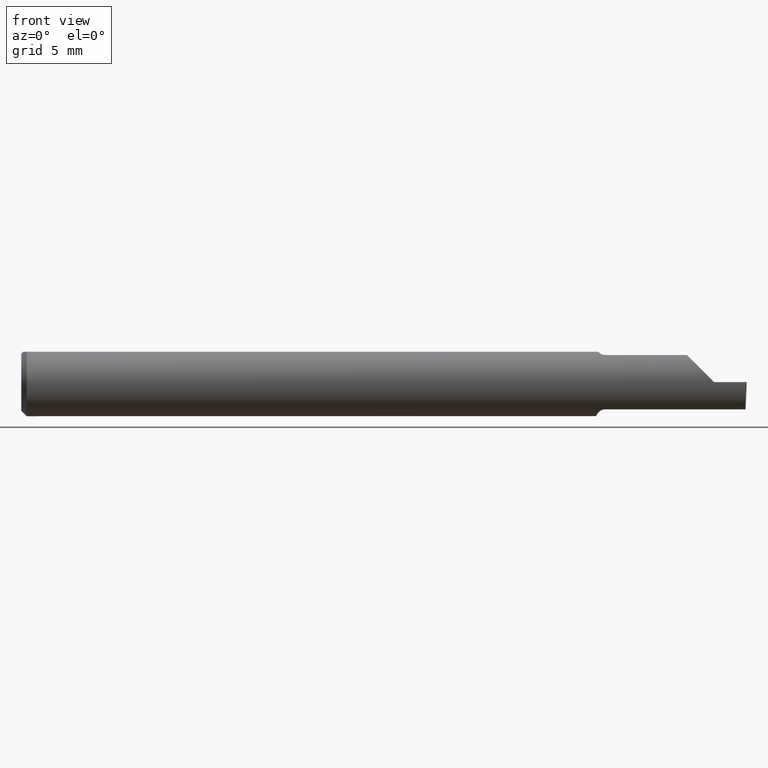
[diagram: clean part render]
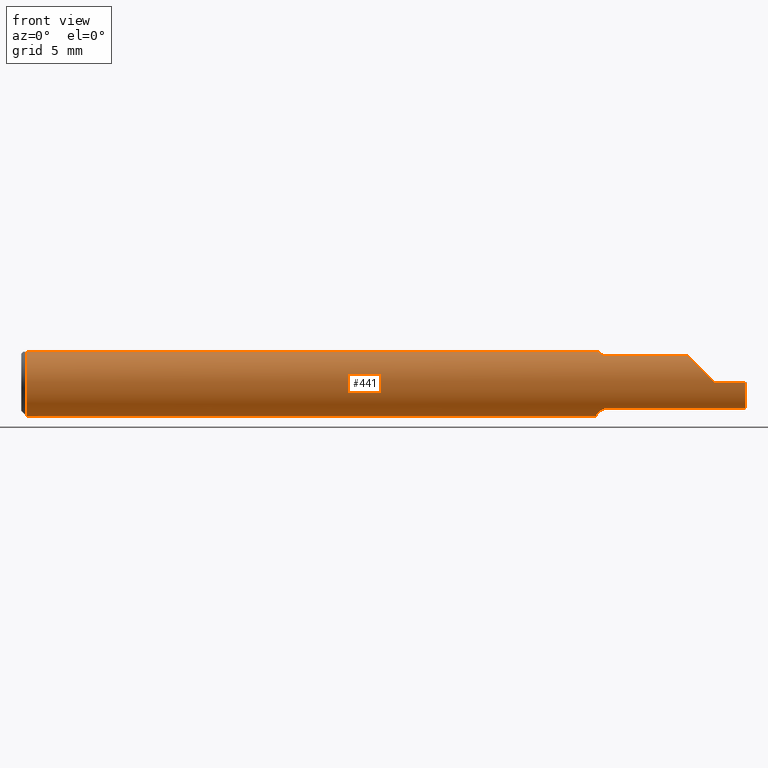
[diagram: same view with one face highlighted and labeled with its STEP entity id]
A machine part, front view. The second image highlights one B-rep face of the part: STEP entity #441.
In plain terms, the highlighted cylindrical surface (edge-blend (fillet) strip) has radius 2.3813 mm, axis along (-1, -0, -0).
Its self-contained STEP definition (entity closure, byte-faithful):
#11 = LINE ( 'NONE', #225, #552 ) ;
#12 = VERTEX_POINT ( 'NONE', #17 ) ;
#15 = VERTEX_POINT ( 'NONE', #341 ) ;
#17 = CARTESIAN_POINT ( 'NONE',  ( 1.609999999999999654, -0.05838157894736842324, 0.07335293954308978737 ) ) ;
#20 = VECTOR ( 'NONE', #621, 39.37007874015748143 ) ;
#23 = EDGE_CURVE ( 'NONE', #622, #12, #557, .T. ) ;
#24 = ORIENTED_EDGE ( 'NONE', *, *, #230, .F. ) ;
#28 = DIRECTION ( 'NONE',  ( -1.000000000000000000, -0.000000000000000000, -0.000000000000000000 ) ) ;
#30 = ORIENTED_EDGE ( 'NONE', *, *, #626, .T. ) ;
#40 = CARTESIAN_POINT ( 'NONE',  ( 1.598207558315201782, -0.05325480917215880128, -0.07718836402619501380 ) ) ;
#51 = EDGE_CURVE ( 'NONE', #15, #388, #481, .T. ) ;
#54 = VECTOR ( 'NONE', #582, 39.37007874015748143 ) ;
#62 = EDGE_CURVE ( 'NONE', #592, #355, #169, .T. ) ;
#64 = CYLINDRICAL_SURFACE ( 'NONE', #516, 0.09375000000000001388 ) ;
#71 = EDGE_LOOP ( 'NONE', ( #336, #232, #586, #30, #109, #563, #537, #438, #24, #139, #344, #199, #392 ) ) ;
#72 = DIRECTION ( 'NONE',  ( -1.000000000000000000, 2.147679240302093876E-17, -0.000000000000000000 ) ) ;
#80 = CARTESIAN_POINT ( 'NONE',  ( 1.854748759155722571, -0.08112527369187338966, 0.05525124084427806420 ) ) ;
#85 = DIRECTION ( 'NONE',  ( 0.02617296143184116158, -0.0004568507411563393905, 0.9996573249755575929 ) ) ;
#91 = VERTEX_POINT ( 'NONE', #495 ) ;
#92 = EDGE_CURVE ( 'NONE', #474, #91, #11, .T. ) ;
#99 = CARTESIAN_POINT ( 'NONE',  ( 1.584999999999999520, -0.007211988304093602635, -0.09347218690445632805 ) ) ;
#109 = ORIENTED_EDGE ( 'NONE', *, *, #265, .F. ) ;
#114 = CARTESIAN_POINT ( 'NONE',  ( 1.590999686877564434, -0.04213074886538892977, 0.08375000000000000500 ) ) ;
#120 = AXIS2_PLACEMENT_3D ( 'NONE', #295, #28, #618 ) ;
#133 = CARTESIAN_POINT ( 'NONE',  ( 1.590999686877564434, -0.04213074886538892977, 0.08375000000000000500 ) ) ;
#139 = ORIENTED_EDGE ( 'NONE', *, *, #62, .F. ) ;
#147 = CARTESIAN_POINT ( 'NONE',  ( 1.796249999999999680, -0.05838157894736843712, 0.07335293954308980124 ) ) ;
#153 = CARTESIAN_POINT ( 'NONE',  ( 1.600060066263265135, -0.05494027375950292363, -0.07598188839406208595 ) ) ;
#160 = CARTESIAN_POINT ( 'NONE',  ( 1.584999999999999520, -0.007211988304093602635, -0.09347218690445632805 ) ) ;
#164 = CARTESIAN_POINT ( 'NONE',  ( 1.607575688152824256, -0.05838157894736861059, 0.07335293954308967634 ) ) ;
#169 = LINE ( 'NONE', #338, #54 ) ;
#172 =( BOUNDED_CURVE ( )  B_SPLINE_CURVE ( 3, ( #246, #558, #300, #503 ),
 .UNSPECIFIED., .F., .T. ) 
 B_SPLINE_CURVE_WITH_KNOTS ( ( 4, 4 ),
 ( 0.08452019423454062985, 0.9826237902196911511 ),
 .UNSPECIFIED. ) 
 CURVE ( )  GEOMETRIC_REPRESENTATION_ITEM ( )  RATIONAL_B_SPLINE_CURVE ( ( 1.000000000000000000, 0.9339060884622309988, 0.9339060884622309988, 1.000000000000000000 ) ) 
 REPRESENTATION_ITEM ( '' )  );
#174 = CARTESIAN_POINT ( 'NONE',  ( 0.01499999999999999944, -0.04213074886588177859, 0.08375000000000000500 ) ) ;
#180 =( BOUNDED_CURVE ( )  B_SPLINE_CURVE ( 3, ( #340, #510, #80, #405 ),
 .UNSPECIFIED., .F., .T. ) 
 B_SPLINE_CURVE_WITH_KNOTS ( ( 4, 4 ),
 ( 4.712388980384689674, 5.610949583684183395 ),
 .UNSPECIFIED. ) 
 CURVE ( )  GEOMETRIC_REPRESENTATION_ITEM ( )  RATIONAL_B_SPLINE_CURVE ( ( 1.000000000000000000, 0.9338399420684103669, 0.9338399420684103669, 1.000000000000000000 ) ) 
 REPRESENTATION_ITEM ( '' )  );
#199 = ORIENTED_EDGE ( 'NONE', *, *, #310, .F. ) ;
#200 = CARTESIAN_POINT ( 'NONE',  ( 1.585324359334076672, -0.01810271085742279698, -0.09214472197636142115 ) ) ;
#204 = CARTESIAN_POINT ( 'NONE',  ( 0.01500000000000000291, 0.04213074886588177859, 0.08375000000000000500 ) ) ;
#211 = CIRCLE ( 'NONE', #334, 0.09375000000000001388 ) ;
#212 = LINE ( 'NONE', #315, #426 ) ;
#218 = DIRECTION ( 'NONE',  ( 0.000000000000000000, 0.000000000000000000, 1.000000000000000000 ) ) ;
#221 = DIRECTION ( 'NONE',  ( -1.000000000000000000, -0.000000000000000000, -0.000000000000000000 ) ) ;
#223 = FACE_OUTER_BOUND ( 'NONE', #71, .T. ) ;
#225 = CARTESIAN_POINT ( 'NONE',  ( 2.999519565323743132E-32, -0.09375000000000001388, 2.449293598294717754E-16 ) ) ;
#230 = EDGE_CURVE ( 'NONE', #355, #15, #368, .T. ) ;
#232 = ORIENTED_EDGE ( 'NONE', *, *, #664, .T. ) ;
#235 = VECTOR ( 'NONE', #72, 39.37007874015748143 ) ;
#246 = CARTESIAN_POINT ( 'NONE',  ( 1.995485408891350287, -0.05838157894736844405, -0.07335293954308980124 ) ) ;
#258 = CARTESIAN_POINT ( 'NONE',  ( 1.609999999999999654, -0.05838157894736840936, -0.07335293954308978737 ) ) ;
#265 = EDGE_CURVE ( 'NONE', #12, #453, #668, .T. ) ;
#271 = VERTEX_POINT ( 'NONE', #258 ) ;
#287 = CARTESIAN_POINT ( 'NONE',  ( 1.994172072281005459, -0.09370431490906530603, -0.09996576130738767108 ) ) ;
#288 = CARTESIAN_POINT ( 'NONE',  ( 1.592739023925776598, -0.04611560730424160010, 0.08174540214768907798 ) ) ;
#295 = CARTESIAN_POINT ( 'NONE',  ( 0.01499999999999999944, 0.000000000000000000, 0.000000000000000000 ) ) ;
#297 = CARTESIAN_POINT ( 'NONE',  ( 1.584999999999999520, 0.000000000000000000, 0.000000000000000000 ) ) ;
#300 = CARTESIAN_POINT ( 'NONE',  ( 1.996027606133761179, -0.09373671316968848477, -0.02909498180803899575 ) ) ;
#310 = EDGE_CURVE ( 'NONE', #271, #311, #576, .T. ) ;
#311 = VERTEX_POINT ( 'NONE', #99 ) ;
#315 = CARTESIAN_POINT ( 'NONE',  ( 0.000000000000000000, -0.04213074886588177859, 0.08375000000000000500 ) ) ;
#325 = CARTESIAN_POINT ( 'NONE',  ( 0.01499999999999999944, 0.000000000000000000, 0.000000000000000000 ) ) ;
#334 = AXIS2_PLACEMENT_3D ( 'NONE', #297, #462, #659 ) ;
#336 = ORIENTED_EDGE ( 'NONE', *, *, #655, .T. ) ;
#338 = CARTESIAN_POINT ( 'NONE',  ( 0.000000000000000000, 0.04213074886588177859, 0.08375000000000000500 ) ) ;
#340 = CARTESIAN_POINT ( 'NONE',  ( 1.910000000000000142, -0.09375000000000001388, 1.102182119232621301E-17 ) ) ;
#341 = CARTESIAN_POINT ( 'NONE',  ( 0.01499999999999999944, 0.000000000000000000, -0.09375000000000001388 ) ) ;
#344 = ORIENTED_EDGE ( 'NONE', *, *, #488, .F. ) ;
#352 = CARTESIAN_POINT ( 'NONE',  ( 1.796249999999999680, -0.05838157894736843712, -0.07335293954308980124 ) ) ;
#354 = EDGE_CURVE ( 'NONE', #388, #622, #212, .T. ) ;
#355 = VERTEX_POINT ( 'NONE', #204 ) ;
#359 = AXIS2_PLACEMENT_3D ( 'NONE', #325, #596, #501 ) ;
#368 = CIRCLE ( 'NONE', #120, 0.09375000000000001388 ) ;
#370 = CARTESIAN_POINT ( 'NONE',  ( 1.609999999999999654, -0.05838157894736840936, -0.07335293954308978737 ) ) ;
#380 = CARTESIAN_POINT ( 'NONE',  ( 1.996789369178486595, -0.09374999999634724135, 1.727064893179230389E-17 ) ) ;
#388 = VERTEX_POINT ( 'NONE', #174 ) ;
#390 = CARTESIAN_POINT ( 'NONE',  ( 1.599466403312456819, -0.05436279821624136893, 0.07640134852137274446 ) ) ;
#392 = ORIENTED_EDGE ( 'NONE', *, *, #650, .F. ) ;
#405 = CARTESIAN_POINT ( 'NONE',  ( 1.836647060456910729, -0.05838157894736844405, 0.07335293954308981512 ) ) ;
#409 = CARTESIAN_POINT ( 'NONE',  ( 1.996788247257474058, -0.09374999020988993015, -4.284443422834860931E-05 ) ) ;
#426 = VECTOR ( 'NONE', #569, 39.37007874015748143 ) ;
#438 = ORIENTED_EDGE ( 'NONE', *, *, #51, .F. ) ;
#440 = CARTESIAN_POINT ( 'NONE',  ( 1.601220712553798720, -0.05572867853941683436, 0.07539872578566603201 ) ) ;
#441 = ADVANCED_FACE ( 'NONE', ( #223 ), #64, .T. ) ;
#442 = DIRECTION ( 'NONE',  ( -1.000000000000000000, -0.000000000000000000, -0.000000000000000000 ) ) ;
#446 = CARTESIAN_POINT ( 'NONE',  ( 1.584999999999999520, 0.04213074886588177859, 0.08375000000000000500 ) ) ;
#453 = VERTEX_POINT ( 'NONE', #581 ) ;
#462 = DIRECTION ( 'NONE',  ( 1.000000000000000000, -2.147679240302093876E-17, 0.000000000000000000 ) ) ;
#472 = CARTESIAN_POINT ( 'NONE',  ( 1.604549969027321721, -0.05752976837683124178, -0.07404057533005115044 ) ) ;
#474 = VERTEX_POINT ( 'NONE', #380 ) ;
#481 = CIRCLE ( 'NONE', #359, 0.09375000000000001388 ) ;
#488 = EDGE_CURVE ( 'NONE', #311, #592, #211, .T. ) ;
#493 = CARTESIAN_POINT ( 'NONE',  ( 1.605240307031869040, -0.05773700189513420594, 0.07387213327103113458 ) ) ;
#495 = CARTESIAN_POINT ( 'NONE',  ( 1.910000000000000142, -0.09375000000000001388, 1.102182119232621301E-17 ) ) ;
#501 = DIRECTION ( 'NONE',  ( 0.000000000000000000, 0.000000000000000000, 1.000000000000000000 ) ) ;
#502 = VERTEX_POINT ( 'NONE', #409 ) ;
#503 = CARTESIAN_POINT ( 'NONE',  ( 1.996788247257474058, -0.09374999020988993015, -4.284443422834860931E-05 ) ) ;
#504 = CARTESIAN_POINT ( 'NONE',  ( 1.594909205099689586, -0.04978158779095854386, 0.07952688576918194585 ) ) ;
#510 = CARTESIAN_POINT ( 'NONE',  ( 1.880932025416039766, -0.09375000000000002776, 0.02906797458396062975 ) ) ;
#516 = AXIS2_PLACEMENT_3D ( 'NONE', #535, #221, #218 ) ;
#521 = CARTESIAN_POINT ( 'NONE',  ( 1.591215966499099022, -0.04318554456501045441, -0.08337622648642020740 ) ) ;
#535 = CARTESIAN_POINT ( 'NONE',  ( 0.000000000000000000, 0.000000000000000000, 0.000000000000000000 ) ) ;
#537 = ORIENTED_EDGE ( 'NONE', *, *, #354, .F. ) ;
#549 = LINE ( 'NONE', #287, #619 ) ;
#552 = VECTOR ( 'NONE', #442, 39.37007874015748143 ) ;
#554 = CARTESIAN_POINT ( 'NONE',  ( 1.995485408891350287, -0.05838157894736844405, -0.07335293954308980124 ) ) ;
#557 = B_SPLINE_CURVE_WITH_KNOTS ( 'NONE', 3,
 ( #114, #288, #504, #390, #440, #493, #164, #638 ),
 .UNSPECIFIED., .F., .F.,
 ( 4, 2, 2, 4 ),
 ( 4.737345209427644843E-07, 0.0003622503278351656944, 0.0005431386244922773105, 0.0007240269211493888723 ),
 .UNSPECIFIED. ) ;
#558 = CARTESIAN_POINT ( 'NONE',  ( 1.995562592080699416, -0.08111288453585545344, -0.05526110136922310345 ) ) ;
#563 = ORIENTED_EDGE ( 'NONE', *, *, #23, .F. ) ;
#569 = DIRECTION ( 'NONE',  ( 1.000000000000000000, 0.000000000000000000, 0.000000000000000000 ) ) ;
#572 = CARTESIAN_POINT ( 'NONE',  ( 1.584999999999999964, -0.01264328839833117439, -0.09305312671069305985 ) ) ;
#576 = B_SPLINE_CURVE_WITH_KNOTS ( 'NONE', 3,
 ( #370, #675, #472, #153, #40, #625, #521, #631, #578, #200, #572, #160 ),
 .UNSPECIFIED., .F., .F.,
 ( 4, 2, 2, 2, 2, 4 ),
 ( 1.968136730861365899E-07, 0.0002100635469676745198, 0.0004199302802622629409, 0.0008396637468514521431, 0.001259397213440641454, 0.001679130680029830656 ),
 .UNSPECIFIED. ) ;
#578 = CARTESIAN_POINT ( 'NONE',  ( 1.586765681351157697, -0.02858678023888824860, -0.08944916949900594272 ) ) ;
#581 = CARTESIAN_POINT ( 'NONE',  ( 1.836647060456910729, -0.05838157894736844405, 0.07335293954308981512 ) ) ;
#582 = DIRECTION ( 'NONE',  ( -1.000000000000000000, -0.000000000000000000, -0.000000000000000000 ) ) ;
#586 = ORIENTED_EDGE ( 'NONE', *, *, #92, .T. ) ;
#592 = VERTEX_POINT ( 'NONE', #446 ) ;
#596 = DIRECTION ( 'NONE',  ( -1.000000000000000000, -0.000000000000000000, -0.000000000000000000 ) ) ;
#618 = DIRECTION ( 'NONE',  ( 0.000000000000000000, 0.000000000000000000, 1.000000000000000000 ) ) ;
#619 = VECTOR ( 'NONE', #85, 39.37007874015748854 ) ;
#621 = DIRECTION ( 'NONE',  ( 1.000000000000000000, -2.147679240302093876E-17, 0.000000000000000000 ) ) ;
#622 = VERTEX_POINT ( 'NONE', #133 ) ;
#625 = CARTESIAN_POINT ( 'NONE',  ( 1.593390868289649376, -0.04761230247806394478, -0.08088482006378601430 ) ) ;
#626 = EDGE_CURVE ( 'NONE', #91, #453, #180, .T. ) ;
#631 = CARTESIAN_POINT ( 'NONE',  ( 1.587861371264698951, -0.03361344351988228979, -0.08767395746301762105 ) ) ;
#638 = CARTESIAN_POINT ( 'NONE',  ( 1.609999999999999654, -0.05838157894736842324, 0.07335293954308978737 ) ) ;
#643 = VERTEX_POINT ( 'NONE', #554 ) ;
#650 = EDGE_CURVE ( 'NONE', #643, #271, #652, .T. ) ;
#652 = LINE ( 'NONE', #352, #235 ) ;
#655 = EDGE_CURVE ( 'NONE', #643, #502, #172, .T. ) ;
#659 = DIRECTION ( 'NONE',  ( 0.000000000000000000, 1.000000000000000000, 0.000000000000000000 ) ) ;
#664 = EDGE_CURVE ( 'NONE', #502, #474, #549, .T. ) ;
#668 = LINE ( 'NONE', #147, #20 ) ;
#675 = CARTESIAN_POINT ( 'NONE',  ( 1.607201432994826318, -0.05838157894736858283, -0.07335293954308967634 ) ) ;